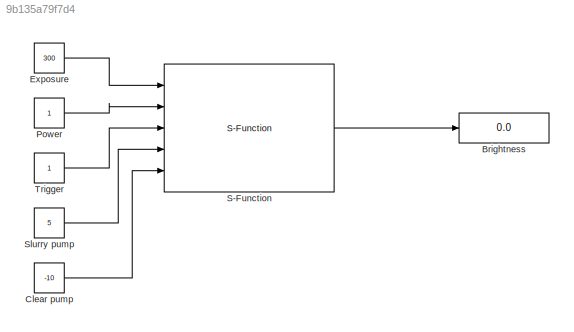
MODEL slx_9b135a79f7d4
KIND model
CONFIG AbsTol = auto
CONFIG EnableMultiTasking = off
CONFIG FixedStep = auto
CONFIG MaxStep = auto
CONFIG MinStep = auto
CONFIG RelTol = 1e-3
CONFIG SampleTimeConstraint = Unconstrained
CONFIG Solver = VariableStepAuto
CONFIG SolverName = VariableStepAuto
CONFIG StartTime = 0.0
CONFIG StopTime = inf
BLOCK [Display] Brightness
  Decimation = 1
  Ports = [1]
BLOCK [Constant] Clear pump
  Value = -10
BLOCK [Constant] Exposure
  Value = 300
BLOCK [Constant] Power
BLOCK [S-Function] S-Function
  EnableBusSupport = off
  FunctionName = image_info_block
  Parameters = 1,int32(5),int32(1)
  Ports = [5, 1]
  SFcnIsStateOwnerBlock = off
  SFunctionDeploymentMode = off
BLOCK [Constant] Slurry pump
  Value = 5
BLOCK [Constant] Trigger
LINE Clear pump:1 -> S-Function:5
LINE Exposure:1 -> S-Function:1
LINE Power:1 -> S-Function:2
LINE S-Function:1 -> Brightness:1
LINE Slurry pump:1 -> S-Function:4
LINE Trigger:1 -> S-Function:3
